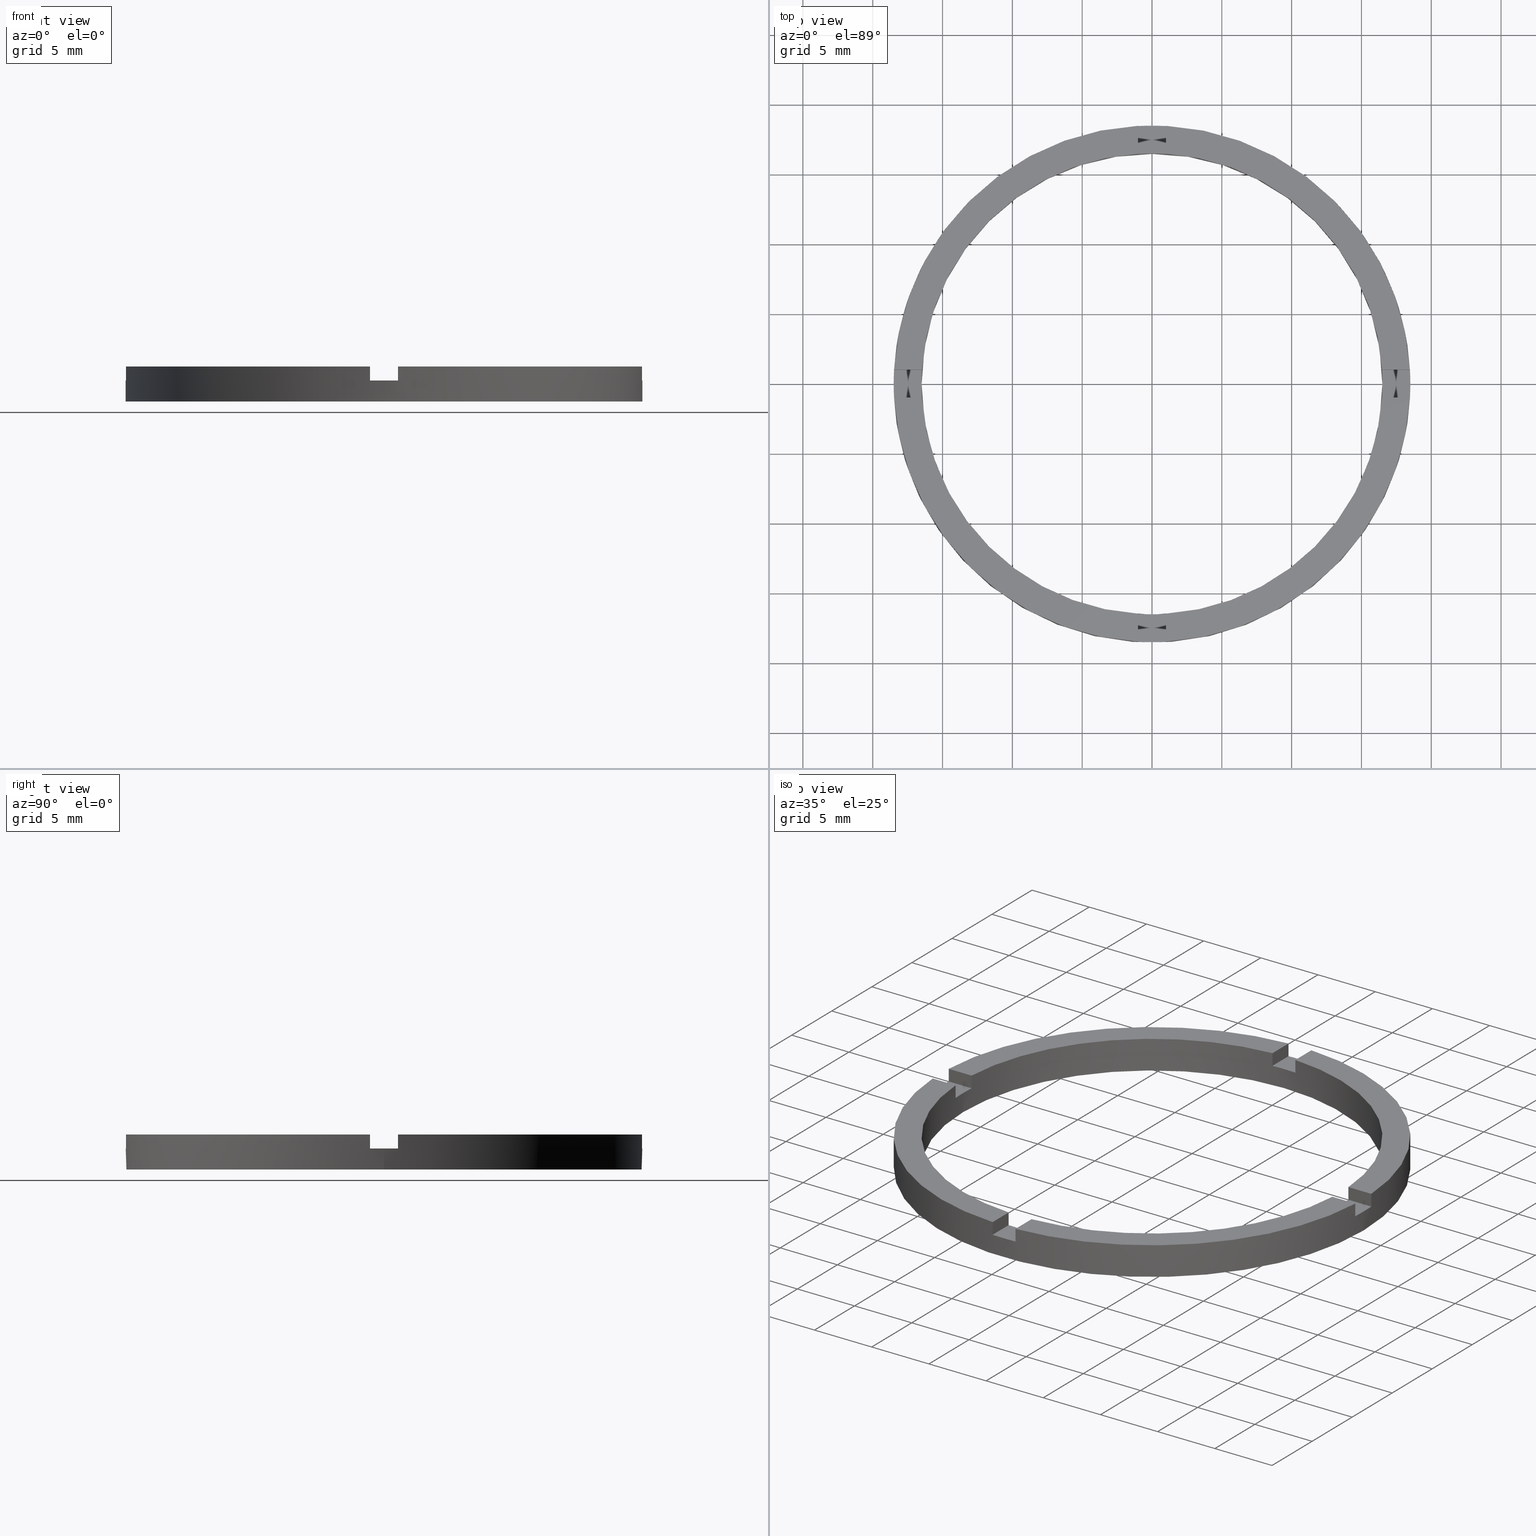
[diagram: canonical four-view strip — front | top / right | iso, engineering-drawing reading convention]
A machine part, canonical four-view strip (front | top / right | iso — engineering-drawing reading convention). The complete STEP part file that produces these views, byte-faithful:
ISO-10303-21;
HEADER;
FILE_DESCRIPTION (( 'STEP AP203' ),
    '1' );
FILE_NAME ('514079.step',
    '2024-12-26T02:35:32',
    ( 'MSI' ),
    ( '' ),
    'SwSTEP 2.0',
    'SolidWorks 2020',
    '' );
FILE_SCHEMA (( 'CONFIG_CONTROL_DESIGN' ));
ENDSEC;

DATA;
#1 = DIRECTION ( 'NONE',  ( 0.000000000000000000, 0.000000000000000000, 1.000000000000000000 ) ) ;
#2 = EDGE_CURVE ( 'NONE', #98, #100, #432, .T. ) ;
#3 = APPROVAL_STATUS ( 'not_yet_approved' ) ;
#4 = CARTESIAN_POINT ( 'NONE',  ( 0.000000000000000000, 0.000000000000000000, 1.500000000000000000 ) ) ;
#5 = AXIS2_PLACEMENT_3D ( 'NONE', #189, #531, #418 ) ;
#6 = ADVANCED_BREP_SHAPE_REPRESENTATION ( '514079', ( #482, #479 ), #270 ) ;
#7 = DIRECTION ( 'NONE',  ( -0.000000000000000000, -0.000000000000000000, -1.000000000000000000 ) ) ;
#8 = DIRECTION ( 'NONE',  ( 1.000000000000000000, 1.951563910473908228E-16, -0.000000000000000000 ) ) ;
#9 = DIRECTION ( 'NONE',  ( 0.000000000000000000, 0.000000000000000000, 1.000000000000000000 ) ) ;
#10 = DIRECTION ( 'NONE',  ( 1.000000000000000000, 0.000000000000000000, 0.000000000000000000 ) ) ;
#11 = CARTESIAN_POINT ( 'NONE',  ( 0.000000000000000000, 0.000000000000000000, 0.000000000000000000 ) ) ;
#12 = CARTESIAN_POINT ( 'NONE',  ( -18.47295320191116375, -1.000000000000025313, 1.500000000000000000 ) ) ;
#13 = AXIS2_PLACEMENT_3D ( 'NONE', #545, #292, #255 ) ;
#14 = CARTESIAN_POINT ( 'NONE',  ( 0.9999999999999733546, 18.47295320191116375, 1.500000000000000000 ) ) ;
#15 = DIRECTION ( 'NONE',  ( 1.000000000000000000, 0.000000000000000000, 0.000000000000000000 ) ) ;
#16 = AXIS2_PLACEMENT_3D ( 'NONE', #498, #324, #439 ) ;
#17 = EDGE_CURVE ( 'NONE', #673, #136, #413, .T. ) ;
#18 = CARTESIAN_POINT ( 'NONE',  ( 0.000000000000000000, 0.000000000000000000, 2.500000000000000000 ) ) ;
#19 = DIRECTION ( 'NONE',  ( 0.000000000000000000, 0.000000000000000000, 1.000000000000000000 ) ) ;
#20 = EDGE_CURVE ( 'NONE', #684, #507, #678, .T. ) ;
#21 = EDGE_CURVE ( 'NONE', #595, #586, #186, .T. ) ;
#22 = CARTESIAN_POINT ( 'NONE',  ( 18.47295320191115309, -1.000000000000157208, 1.500000000000000000 ) ) ;
#23 = CARTESIAN_POINT ( 'NONE',  ( 0.000000000000000000, 0.000000000000000000, 2.500000000000000000 ) ) ;
#24 = DIRECTION ( 'NONE',  ( 0.000000000000000000, 0.000000000000000000, 1.000000000000000000 ) ) ;
#25 = DIRECTION ( 'NONE',  ( 0.000000000000000000, 0.000000000000000000, 1.000000000000000000 ) ) ;
#26 = DIRECTION ( 'NONE',  ( 0.000000000000000000, 0.000000000000000000, 1.000000000000000000 ) ) ;
#27 = CARTESIAN_POINT ( 'NONE',  ( -8.500000000000184741, -1.000000000000023537, 1.500000000000000000 ) ) ;
#28 = PLANE ( 'NONE',  #249 ) ;
#29 = ADVANCED_FACE ( 'NONE', ( #451 ), #528, .F. ) ;
#30 = DIRECTION ( 'NONE',  ( -0.000000000000000000, -0.000000000000000000, -1.000000000000000000 ) ) ;
#31 = DIRECTION ( 'NONE',  ( 1.000000000000000000, 0.000000000000000000, 0.000000000000000000 ) ) ;
#32 = ADVANCED_FACE ( 'NONE', ( #423 ), #374, .F. ) ;
#33 = PERSON_AND_ORGANIZATION_ROLE ( 'classification_officer' ) ;
#34 = CARTESIAN_POINT ( 'NONE',  ( 8.499999999999992895, 0.9999999999998419042, 2.500000000000000000 ) ) ;
#35 = PRODUCT_RELATED_PRODUCT_CATEGORY ( 'detail', '', ( #284 ) ) ;
#36 = EDGE_CURVE ( 'NONE', #348, #594, #159, .T. ) ;
#37 = DIRECTION ( 'NONE',  ( -0.000000000000000000, 0.000000000000000000, 1.000000000000000000 ) ) ;
#38 = EDGE_CURVE ( 'NONE', #684, #618, #688, .T. ) ;
#39 = CARTESIAN_POINT ( 'NONE',  ( 0.000000000000000000, 0.000000000000000000, 1.500000000000000000 ) ) ;
#40 = CARTESIAN_POINT ( 'NONE',  ( -8.500000000000184741, 0.9999999999999765743, 2.500000000000000000 ) ) ;
#41 = DIRECTION ( 'NONE',  ( -1.000000000000000000, -1.951563910473908228E-16, 0.000000000000000000 ) ) ;
#42 = PLANE ( 'NONE',  #327 ) ;
#43 = DIRECTION ( 'NONE',  ( 0.000000000000000000, 0.000000000000000000, 1.000000000000000000 ) ) ;
#44 = DIRECTION ( 'NONE',  ( -1.000000000000000000, -8.673617379884034239E-17, -0.000000000000000000 ) ) ;
#45 = CARTESIAN_POINT ( 'NONE',  ( 0.9999999999999733546, 18.47295320191116375, 2.500000000000000000 ) ) ;
#46 = CARTESIAN_POINT ( 'NONE',  ( 0.000000000000000000, 0.000000000000000000, 1.500000000000000000 ) ) ;
#47 = DIRECTION ( 'NONE',  ( 1.000000000000000000, 8.673617379884034239E-17, 0.000000000000000000 ) ) ;
#48 = DIRECTION ( 'NONE',  ( 0.000000000000000000, -0.000000000000000000, 1.000000000000000000 ) ) ;
#49 = DIRECTION ( 'NONE',  ( 0.000000000000000000, 0.000000000000000000, 1.000000000000000000 ) ) ;
#50 = AXIS2_PLACEMENT_3D ( 'NONE', #11, #275, #646 ) ;
#51 = DIRECTION ( 'NONE',  ( 0.000000000000000000, 0.000000000000000000, 1.000000000000000000 ) ) ;
#52 = CARTESIAN_POINT ( 'NONE',  ( 0.000000000000000000, 0.000000000000000000, 2.500000000000000000 ) ) ;
#53 = CARTESIAN_POINT ( 'NONE',  ( -18.50000000000000000, 0.000000000000000000, 1.500000000000000000 ) ) ;
#54 = ORIENTED_EDGE ( 'NONE', *, *, #296, .F. ) ;
#55 = ORIENTED_EDGE ( 'NONE', *, *, #251, .F. ) ;
#56 = CC_DESIGN_APPROVAL ( #262, ( #412 ) ) ;
#57 = ADVANCED_FACE ( 'NONE', ( #166 ), #537, .T. ) ;
#58 = ORIENTED_EDGE ( 'NONE', *, *, #427, .F. ) ;
#59 = DIRECTION ( 'NONE',  ( 1.000000000000000000, 0.000000000000000000, -0.000000000000000000 ) ) ;
#60 = DIRECTION ( 'NONE',  ( 1.951563910473908228E-16, -1.000000000000000000, 0.000000000000000000 ) ) ;
#61 = ORIENTED_EDGE ( 'NONE', *, *, #355, .F. ) ;
#62 = ORIENTED_EDGE ( 'NONE', *, *, #289, .F. ) ;
#63 = ORIENTED_EDGE ( 'NONE', *, *, #540, .T. ) ;
#64 = ADVANCED_FACE ( 'NONE', ( #169 ), #456, .T. ) ;
#65 = VERTEX_POINT ( 'NONE', #12 ) ;
#66 = EDGE_CURVE ( 'NONE', #616, #595, #723, .T. ) ;
#67 = ORIENTED_EDGE ( 'NONE', *, *, #543, .F. ) ;
#68 = VERTEX_POINT ( 'NONE', #530 ) ;
#69 = PLANE ( 'NONE',  #496 ) ;
#70 = ORIENTED_EDGE ( 'NONE', *, *, #259, .T. ) ;
#71 = PERSON_AND_ORGANIZATION_ROLE ( 'creator' ) ;
#72 = DIRECTION ( 'NONE',  ( -1.000000000000000000, -8.673617379884034239E-17, -0.000000000000000000 ) ) ;
#73 = PLANE ( 'NONE',  #273 ) ;
#74 = ORIENTED_EDGE ( 'NONE', *, *, #562, .T. ) ;
#75 = ORIENTED_EDGE ( 'NONE', *, *, #253, .F. ) ;
#76 = ORIENTED_EDGE ( 'NONE', *, *, #696, .F. ) ;
#77 = CLOSED_SHELL ( 'NONE', ( #226, #526, #57, #301, #774, #165, #295, #64, #371, #32, #305, #552, #486, #29, #730, #478, #235, #521, #558, #473, #780 ) ) ;
#78 = AXIS2_PLACEMENT_3D ( 'NONE', #277, #398, #490 ) ;
#79 = DIRECTION ( 'NONE',  ( 1.000000000000000000, 0.000000000000000000, 0.000000000000000000 ) ) ;
#80 = ORIENTED_EDGE ( 'NONE', *, *, #254, .T. ) ;
#81 = APPROVAL_ROLE ( '' ) ;
#82 = DIRECTION ( 'NONE',  ( -1.000000000000000000, -1.951563910473908228E-16, 0.000000000000000000 ) ) ;
#83 = DIRECTION ( 'NONE',  ( 1.301042606982605321E-16, -1.000000000000000000, 0.000000000000000000 ) ) ;
#84 = VERTEX_POINT ( 'NONE', #781 ) ;
#85 = ORIENTED_EDGE ( 'NONE', *, *, #523, .T. ) ;
#86 = ORIENTED_EDGE ( 'NONE', *, *, #107, .F. ) ;
#87 = ORIENTED_EDGE ( 'NONE', *, *, #244, .T. ) ;
#88 = DIRECTION ( 'NONE',  ( -0.000000000000000000, 0.000000000000000000, 1.000000000000000000 ) ) ;
#89 = DIRECTION ( 'NONE',  ( -1.000000000000000000, -1.301042606982605321E-16, 0.000000000000000000 ) ) ;
#90 = DIRECTION ( 'NONE',  ( 1.000000000000000000, 0.000000000000000000, -0.000000000000000000 ) ) ;
#91 = VERTEX_POINT ( 'NONE', #503 ) ;
#92 = ORIENTED_EDGE ( 'NONE', *, *, #343, .T. ) ;
#93 = AXIS2_PLACEMENT_3D ( 'NONE', #718, #556, #778 ) ;
#94 = ORIENTED_EDGE ( 'NONE', *, *, #97, .F. ) ;
#95 = ORIENTED_EDGE ( 'NONE', *, *, #21, .F. ) ;
#96 = DIRECTION ( 'NONE',  ( 0.000000000000000000, 0.000000000000000000, 1.000000000000000000 ) ) ;
#97 = EDGE_CURVE ( 'NONE', #100, #136, #732, .T. ) ;
#98 = VERTEX_POINT ( 'NONE', #429 ) ;
#99 = EDGE_LOOP ( 'NONE', ( #86, #344 ) ) ;
#100 = VERTEX_POINT ( 'NONE', #236 ) ;
#101 = ORIENTED_EDGE ( 'NONE', *, *, #20, .T. ) ;
#102 = LINE ( 'NONE', #250, #670 ) ;
#103 = DIRECTION ( 'NONE',  ( 1.000000000000000000, 0.000000000000000000, 0.000000000000000000 ) ) ;
#104 = ORIENTED_EDGE ( 'NONE', *, *, #425, .T. ) ;
#105 = VERTEX_POINT ( 'NONE', #247 ) ;
#106 = EDGE_CURVE ( 'NONE', #65, #689, #457, .T. ) ;
#107 = EDGE_CURVE ( 'NONE', #350, #604, #204, .T. ) ;
#108 = CARTESIAN_POINT ( 'NONE',  ( 0.000000000000000000, 0.000000000000000000, 1.500000000000000000 ) ) ;
#109 = ORIENTED_EDGE ( 'NONE', *, *, #274, .T. ) ;
#110 = AXIS2_PLACEMENT_3D ( 'NONE', #743, #9, #90 ) ;
#111 = ORIENTED_EDGE ( 'NONE', *, *, #769, .T. ) ;
#112 = LINE ( 'NONE', #501, #690 ) ;
#113 = ORIENTED_EDGE ( 'NONE', *, *, #38, .T. ) ;
#114 = VECTOR ( 'NONE', #477, 1000.000000000000000 ) ;
#115 = CARTESIAN_POINT ( 'NONE',  ( -18.47295320191116375, 0.9999999999999746869, 1.500000000000000000 ) ) ;
#116 = EDGE_CURVE ( 'NONE', #604, #350, #726, .T. ) ;
#117 = VERTEX_POINT ( 'NONE', #406 ) ;
#118 = FACE_OUTER_BOUND ( 'NONE', #598, .T. ) ;
#119 = ORIENTED_EDGE ( 'NONE', *, *, #466, .F. ) ;
#120 = LINE ( 'NONE', #135, #671 ) ;
#121 = CARTESIAN_POINT ( 'NONE',  ( 0.000000000000000000, 0.000000000000000000, 1.500000000000000000 ) ) ;
#122 = PRODUCT_DEFINITION_SHAPE ( 'NONE', 'NONE',  #620 ) ;
#123 = FACE_OUTER_BOUND ( 'NONE', #453, .T. ) ;
#124 = CC_DESIGN_DATE_AND_TIME_ASSIGNMENT ( #205, #230, ( #620 ) ) ;
#125 = ORIENTED_EDGE ( 'NONE', *, *, #518, .F. ) ;
#126 = VECTOR ( 'NONE', #30, 1000.000000000000000 ) ;
#127 = LINE ( 'NONE', #550, #126 ) ;
#128 = ORIENTED_EDGE ( 'NONE', *, *, #389, .F. ) ;
#129 = LINE ( 'NONE', #612, #687 ) ;
#130 = VECTOR ( 'NONE', #257, 1000.000000000000000 ) ;
#131 = AXIS2_PLACEMENT_3D ( 'NONE', #517, #653, #772 ) ;
#132 = CIRCLE ( 'NONE', #533, 16.50000000000000000 ) ;
#133 = VERTEX_POINT ( 'NONE', #281 ) ;
#134 = EDGE_CURVE ( 'NONE', #183, #509, #198, .T. ) ;
#135 = CARTESIAN_POINT ( 'NONE',  ( 18.50000000000000000, 2.265596578422603396E-15, 2.500000000000000000 ) ) ;
#136 = VERTEX_POINT ( 'NONE', #306 ) ;
#137 = FACE_OUTER_BOUND ( 'NONE', #386, .T. ) ;
#138 = ORIENTED_EDGE ( 'NONE', *, *, #662, .F. ) ;
#139 = LINE ( 'NONE', #145, #408 ) ;
#140 = PLANE ( 'NONE',  #487 ) ;
#141 = ORIENTED_EDGE ( 'NONE', *, *, #38, .F. ) ;
#142 = CIRCLE ( 'NONE', #431, 18.50000000000000000 ) ;
#143 = ORIENTED_EDGE ( 'NONE', *, *, #107, .T. ) ;
#144 = VECTOR ( 'NONE', #573, 1000.000000000000000 ) ;
#145 = CARTESIAN_POINT ( 'NONE',  ( -1.000000000000161204, -16.46966909200059348, 2.500000000000000000 ) ) ;
#146 = VECTOR ( 'NONE', #72, 1000.000000000000000 ) ;
#147 = CIRCLE ( 'NONE', #151, 18.50000000000000000 ) ;
#148 = DIRECTION ( 'NONE',  ( 1.000000000000000000, 1.951563910473908228E-16, 0.000000000000000000 ) ) ;
#149 = VECTOR ( 'NONE', #82, 1000.000000000000000 ) ;
#150 = CYLINDRICAL_SURFACE ( 'NONE', #177, 18.50000000000000000 ) ;
#151 = AXIS2_PLACEMENT_3D ( 'NONE', #245, #330, #691 ) ;
#152 = FACE_OUTER_BOUND ( 'NONE', #628, .T. ) ;
#153 = ORIENTED_EDGE ( 'NONE', *, *, #106, .F. ) ;
#154 = CIRCLE ( 'NONE', #93, 16.50000000000000000 ) ;
#155 = CARTESIAN_POINT ( 'NONE',  ( -18.47295320191116375, -1.000000000000025313, 2.500000000000000000 ) ) ;
#156 = ORIENTED_EDGE ( 'NONE', *, *, #174, .T. ) ;
#157 = PERSON_AND_ORGANIZATION ( #547, #695 ) ;
#158 = CIRCLE ( 'NONE', #191, 16.50000000000000000 ) ;
#159 = LINE ( 'NONE', #228, #175 ) ;
#160 = VECTOR ( 'NONE', #202, 1000.000000000000000 ) ;
#161 = ORIENTED_EDGE ( 'NONE', *, *, #427, .T. ) ;
#162 = ORIENTED_EDGE ( 'NONE', *, *, #589, .T. ) ;
#163 = VECTOR ( 'NONE', #508, 1000.000000000000000 ) ;
#164 = CIRCLE ( 'NONE', #5, 18.50000000000000000 ) ;
#165 = ADVANCED_FACE ( 'NONE', ( #200 ), #42, .T. ) ;
#166 = FACE_OUTER_BOUND ( 'NONE', #351, .T. ) ;
#167 = VERTEX_POINT ( 'NONE', #285 ) ;
#168 = VECTOR ( 'NONE', #701, 1000.000000000000000 ) ;
#169 = FACE_OUTER_BOUND ( 'NONE', #340, .T. ) ;
#170 = CIRCLE ( 'NONE', #733, 18.50000000000000000 ) ;
#171 = PLANE ( 'NONE',  #572 ) ;
#172 = ORIENTED_EDGE ( 'NONE', *, *, #455, .T. ) ;
#173 = VECTOR ( 'NONE', #581, 1000.000000000000000 ) ;
#174 = EDGE_CURVE ( 'NONE', #117, #609, #721, .T. ) ;
#175 = VECTOR ( 'NONE', #8, 1000.000000000000000 ) ;
#176 = FACE_OUTER_BOUND ( 'NONE', #650, .T. ) ;
#177 = AXIS2_PLACEMENT_3D ( 'NONE', #484, #181, #399 ) ;
#178 = PERSON_AND_ORGANIZATION ( #547, #695 ) ;
#179 = ORIENTED_EDGE ( 'NONE', *, *, #725, .T. ) ;
#180 = COORDINATED_UNIVERSAL_TIME_OFFSET ( 8, 0, .AHEAD. ) ;
#181 = DIRECTION ( 'NONE',  ( -0.000000000000000000, -0.000000000000000000, -1.000000000000000000 ) ) ;
#182 = ORIENTED_EDGE ( 'NONE', *, *, #728, .T. ) ;
#183 = VERTEX_POINT ( 'NONE', #188 ) ;
#184 = ORIENTED_EDGE ( 'NONE', *, *, #769, .F. ) ;
#185 = ORIENTED_EDGE ( 'NONE', *, *, #563, .T. ) ;
#186 = LINE ( 'NONE', #40, #149 ) ;
#187 = EDGE_LOOP ( 'NONE', ( #339, #448, #153, #195 ) ) ;
#188 = CARTESIAN_POINT ( 'NONE',  ( -1.000000000000161204, -16.46966909200059348, 1.500000000000000000 ) ) ;
#189 = CARTESIAN_POINT ( 'NONE',  ( 0.000000000000000000, 0.000000000000000000, 1.500000000000000000 ) ) ;
#190 = ORIENTED_EDGE ( 'NONE', *, *, #331, .T. ) ;
#191 = AXIS2_PLACEMENT_3D ( 'NONE', #337, #542, #328 ) ;
#192 = DIRECTION ( 'NONE',  ( 0.000000000000000000, 0.000000000000000000, 1.000000000000000000 ) ) ;
#193 = CARTESIAN_POINT ( 'NONE',  ( 0.000000000000000000, 0.000000000000000000, 2.500000000000000000 ) ) ;
#194 = LINE ( 'NONE', #549, #447 ) ;
#195 = ORIENTED_EDGE ( 'NONE', *, *, #445, .F. ) ;
#196 = VECTOR ( 'NONE', #535, 1000.000000000000000 ) ;
#197 = ORIENTED_EDGE ( 'NONE', *, *, #728, .F. ) ;
#198 = CIRCLE ( 'NONE', #577, 16.50000000000000000 ) ;
#199 = AXIS2_PLACEMENT_3D ( 'NONE', #243, #325, #430 ) ;
#200 = FACE_OUTER_BOUND ( 'NONE', #625, .T. ) ;
#201 = CARTESIAN_POINT ( 'NONE',  ( 0.000000000000000000, 0.000000000000000000, 2.500000000000000000 ) ) ;
#202 = DIRECTION ( 'NONE',  ( 0.000000000000000000, 1.000000000000000000, 0.000000000000000000 ) ) ;
#203 = FACE_OUTER_BOUND ( 'NONE', #346, .T. ) ;
#204 = CIRCLE ( 'NONE', #513, 18.50000000000000000 ) ;
#205 = DATE_AND_TIME ( #485, #744 ) ;
#206 = CC_DESIGN_APPROVAL ( #593, ( #308 ) ) ;
#207 = CIRCLE ( 'NONE', #630, 16.50000000000000000 ) ;
#208 = PERSON_AND_ORGANIZATION ( #547, #695 ) ;
#209 = CARTESIAN_POINT ( 'NONE',  ( 16.46966909200059703, -1.000000000000157208, 1.500000000000000000 ) ) ;
#210 = EDGE_CURVE ( 'NONE', #91, #689, #207, .T. ) ;
#211 = DATE_AND_TIME ( #727, #462 ) ;
#212 = EDGE_CURVE ( 'NONE', #603, #644, #734, .T. ) ;
#213 = DIRECTION ( 'NONE',  ( 1.000000000000000000, 0.000000000000000000, 0.000000000000000000 ) ) ;
#214 = CARTESIAN_POINT ( 'NONE',  ( 0.9999999999999733546, 16.46966909200060414, 2.500000000000000000 ) ) ;
#215 = APPROVAL_DATE_TIME ( #735, #262 ) ;
#216 = PERSON_AND_ORGANIZATION ( #547, #695 ) ;
#217 = PLANE ( 'NONE',  #13 ) ;
#218 = CALENDAR_DATE ( 2024, 26, 12 ) ;
#219 = APPROVAL_PERSON_ORGANIZATION ( #472, #593, #294 ) ;
#220 = COORDINATED_UNIVERSAL_TIME_OFFSET ( 8, 0, .AHEAD. ) ;
#221 = CC_DESIGN_PERSON_AND_ORGANIZATION_ASSIGNMENT ( #460, #71, ( #620 ) ) ;
#222 = CARTESIAN_POINT ( 'NONE',  ( -1.000000000000026645, 16.46966909200060059, 2.500000000000000000 ) ) ;
#223 = APPROVAL_PERSON_ORGANIZATION ( #748, #262, #557 ) ;
#224 = CARTESIAN_POINT ( 'NONE',  ( -8.500000000000184741, 0.9999999999999765743, 1.500000000000000000 ) ) ;
#225 = DIRECTION ( 'NONE',  ( 0.000000000000000000, 0.000000000000000000, 1.000000000000000000 ) ) ;
#226 = ADVANCED_FACE ( 'NONE', ( #203 ), #377, .F. ) ;
#227 =( NAMED_UNIT ( * ) PLANE_ANGLE_UNIT ( ) SI_UNIT ( $, .RADIAN. ) );
#228 = CARTESIAN_POINT ( 'NONE',  ( -8.500000000000184741, -1.000000000000023537, 2.500000000000000000 ) ) ;
#229 = DIRECTION ( 'NONE',  ( 0.000000000000000000, 0.000000000000000000, 1.000000000000000000 ) ) ;
#230 = DATE_TIME_ROLE ( 'creation_date' ) ;
#231 = SHAPE_DEFINITION_REPRESENTATION ( #122, #6 ) ;
#232 = AXIS2_PLACEMENT_3D ( 'NONE', #4, #561, #737 ) ;
#233 = CARTESIAN_POINT ( 'NONE',  ( 8.499999999999992895, -1.000000000000158096, 1.500000000000000000 ) ) ;
#234 = APPLICATION_CONTEXT ( 'configuration controlled 3d designs of mechanical parts and assemblies' ) ;
#235 = ADVANCED_FACE ( 'NONE', ( #643 ), #69, .F. ) ;
#236 = CARTESIAN_POINT ( 'NONE',  ( 16.46966909200061480, 0.9999999999998427924, 2.500000000000000000 ) ) ;
#237 = ORIENTED_EDGE ( 'NONE', *, *, #212, .T. ) ;
#238 = CARTESIAN_POINT ( 'NONE',  ( 0.000000000000000000, 0.000000000000000000, 1.500000000000000000 ) ) ;
#239 = CARTESIAN_POINT ( 'NONE',  ( 0.000000000000000000, 0.000000000000000000, 1.500000000000000000 ) ) ;
#240 = CC_DESIGN_PERSON_AND_ORGANIZATION_ASSIGNMENT ( #480, #33, ( #308 ) ) ;
#241 = PLANE ( 'NONE',  #554 ) ;
#242 = DIRECTION ( 'NONE',  ( 1.000000000000000000, 0.000000000000000000, 0.000000000000000000 ) ) ;
#243 = CARTESIAN_POINT ( 'NONE',  ( 0.000000000000000000, 0.000000000000000000, 2.500000000000000000 ) ) ;
#244 = EDGE_CURVE ( 'NONE', #334, #91, #627, .T. ) ;
#245 = CARTESIAN_POINT ( 'NONE',  ( 0.000000000000000000, 0.000000000000000000, 1.500000000000000000 ) ) ;
#246 = AXIS2_PLACEMENT_3D ( 'NONE', #239, #312, #407 ) ;
#247 = CARTESIAN_POINT ( 'NONE',  ( 0.9999999999998391287, -18.47295320191117085, 2.500000000000000000 ) ) ;
#248 = PLANE ( 'NONE',  #131 ) ;
#249 = AXIS2_PLACEMENT_3D ( 'NONE', #770, #25, #775 ) ;
#250 = CARTESIAN_POINT ( 'NONE',  ( 0.9999999999999733546, 8.499999999999998224, 2.500000000000000000 ) ) ;
#251 = EDGE_CURVE ( 'NONE', #133, #509, #657, .T. ) ;
#252 = CARTESIAN_POINT ( 'NONE',  ( -1.000000000000026645, 16.46966909200060059, 2.500000000000000000 ) ) ;
#253 = EDGE_CURVE ( 'NONE', #459, #621, #649, .T. ) ;
#254 = EDGE_CURVE ( 'NONE', #117, #320, #396, .T. ) ;
#255 = DIRECTION ( 'NONE',  ( 1.000000000000000000, 0.000000000000000000, -0.000000000000000000 ) ) ;
#256 = DIRECTION ( 'NONE',  ( -0.000000000000000000, -0.000000000000000000, -1.000000000000000000 ) ) ;
#257 = DIRECTION ( 'NONE',  ( -0.000000000000000000, -0.000000000000000000, -1.000000000000000000 ) ) ;
#258 = EDGE_CURVE ( 'NONE', #436, #167, #652, .T. ) ;
#259 = EDGE_CURVE ( 'NONE', #167, #588, #665, .T. ) ;
#260 = CARTESIAN_POINT ( 'NONE',  ( 16.50000000000000000, 2.020667218593133100E-15, 2.500000000000000000 ) ) ;
#261 = CARTESIAN_POINT ( 'NONE',  ( 16.50000000000000000, 2.020667218593133100E-15, 0.000000000000000000 ) ) ;
#262 = APPROVAL ( #483, 'δָ��' ) ;
#263 = CARTESIAN_POINT ( 'NONE',  ( -18.47295320191116375, 0.9999999999999746869, 2.500000000000000000 ) ) ;
#264 =( NAMED_UNIT ( * ) SI_UNIT ( $, .STERADIAN. ) SOLID_ANGLE_UNIT ( ) );
#265 = DIRECTION ( 'NONE',  ( 0.000000000000000000, 0.000000000000000000, 1.000000000000000000 ) ) ;
#266 = UNCERTAINTY_MEASURE_WITH_UNIT (LENGTH_MEASURE( 1.000000000000000082E-05 ), #471, 'distance_accuracy_value', 'NONE');
#267 = EDGE_CURVE ( 'NONE', #100, #609, #132, .T. ) ;
#268 = DIRECTION ( 'NONE',  ( -0.000000000000000000, -0.000000000000000000, -1.000000000000000000 ) ) ;
#269 = DIRECTION ( 'NONE',  ( 1.000000000000000000, 0.000000000000000000, 0.000000000000000000 ) ) ;
#270 =( GEOMETRIC_REPRESENTATION_CONTEXT ( 3 ) GLOBAL_UNCERTAINTY_ASSIGNED_CONTEXT ( ( #266 ) ) GLOBAL_UNIT_ASSIGNED_CONTEXT ( ( #471, #227, #264 ) ) REPRESENTATION_CONTEXT ( 'NONE', 'WORKASPACE' ) );
#271 = CARTESIAN_POINT ( 'NONE',  ( 0.000000000000000000, 0.000000000000000000, 2.500000000000000000 ) ) ;
#272 = DIRECTION ( 'NONE',  ( -0.000000000000000000, -0.000000000000000000, -1.000000000000000000 ) ) ;
#273 = AXIS2_PLACEMENT_3D ( 'NONE', #731, #365, #300 ) ;
#274 = EDGE_CURVE ( 'NONE', #644, #709, #400, .T. ) ;
#275 = DIRECTION ( 'NONE',  ( 0.000000000000000000, 0.000000000000000000, 1.000000000000000000 ) ) ;
#276 = CARTESIAN_POINT ( 'NONE',  ( 8.499999999999992895, -1.000000000000158096, 1.500000000000000000 ) ) ;
#277 = CARTESIAN_POINT ( 'NONE',  ( 0.000000000000000000, 0.000000000000000000, 1.500000000000000000 ) ) ;
#278 = CARTESIAN_POINT ( 'NONE',  ( 16.46966909200059703, -1.000000000000157208, 2.500000000000000000 ) ) ;
#279 = PLANE ( 'NONE',  #605 ) ;
#280 = AXIS2_PLACEMENT_3D ( 'NONE', #193, #575, #286 ) ;
#281 = CARTESIAN_POINT ( 'NONE',  ( 0.9999999999998389066, -16.46966909200061480, 2.500000000000000000 ) ) ;
#282 = CARTESIAN_POINT ( 'NONE',  ( -1.000000000000160982, -18.47295320191115309, 2.500000000000000000 ) ) ;
#283 = CARTESIAN_POINT ( 'NONE',  ( 18.47295320191117085, 0.9999999999998427924, 1.500000000000000000 ) ) ;
#284 = PRODUCT ( '514079', '514079', '', ( #551 ) ) ;
#285 = CARTESIAN_POINT ( 'NONE',  ( 18.50000000000000000, 2.265596578422603396E-15, 1.500000000000000000 ) ) ;
#286 = DIRECTION ( 'NONE',  ( 1.000000000000000000, 0.000000000000000000, -0.000000000000000000 ) ) ;
#287 = CC_DESIGN_PERSON_AND_ORGANIZATION_ASSIGNMENT ( #178, #720, ( #284 ) ) ;
#288 = CARTESIAN_POINT ( 'NONE',  ( 0.9999999999999733546, 18.47295320191116375, 2.500000000000000000 ) ) ;
#289 = EDGE_CURVE ( 'NONE', #609, #621, #102, .T. ) ;
#290 = CARTESIAN_POINT ( 'NONE',  ( -1.000000000000160982, -18.47295320191115309, 2.500000000000000000 ) ) ;
#291 = AXIS2_PLACEMENT_3D ( 'NONE', #121, #360, #10 ) ;
#292 = DIRECTION ( 'NONE',  ( 0.000000000000000000, 0.000000000000000000, 1.000000000000000000 ) ) ;
#293 = CARTESIAN_POINT ( 'NONE',  ( 0.9999999999998391287, -18.47295320191117085, 2.500000000000000000 ) ) ;
#294 = APPROVAL_ROLE ( '' ) ;
#295 = ADVANCED_FACE ( 'NONE', ( #404, #631 ), #217, .F. ) ;
#296 = EDGE_CURVE ( 'NONE', #105, #709, #358, .T. ) ;
#297 = CARTESIAN_POINT ( 'NONE',  ( 18.47295320191115309, -1.000000000000157208, 2.500000000000000000 ) ) ;
#298 = CARTESIAN_POINT ( 'NONE',  ( 0.000000000000000000, 0.000000000000000000, 0.000000000000000000 ) ) ;
#299 = EDGE_CURVE ( 'NONE', #311, #350, #403, .T. ) ;
#300 = DIRECTION ( 'NONE',  ( -1.301042606982605321E-16, 1.000000000000000000, 0.000000000000000000 ) ) ;
#301 = ADVANCED_FACE ( 'NONE', ( #379 ), #28, .T. ) ;
#302 = CARTESIAN_POINT ( 'NONE',  ( -16.46966909200060414, 0.9999999999999751310, 1.500000000000000000 ) ) ;
#303 = DIRECTION ( 'NONE',  ( 0.000000000000000000, -0.000000000000000000, 1.000000000000000000 ) ) ;
#304 = DIRECTION ( 'NONE',  ( 1.000000000000000000, 0.000000000000000000, -0.000000000000000000 ) ) ;
#305 = ADVANCED_FACE ( 'NONE', ( #661 ), #140, .F. ) ;
#306 = CARTESIAN_POINT ( 'NONE',  ( 16.46966909200061480, 0.9999999999998427924, 1.500000000000000000 ) ) ;
#307 = PLANE ( 'NONE',  #759 ) ;
#308 = SECURITY_CLASSIFICATION ( '', '', #782 ) ;
#309 = ORIENTED_EDGE ( 'NONE', *, *, #2, .T. ) ;
#310 = ORIENTED_EDGE ( 'NONE', *, *, #17, .T. ) ;
#311 = VERTEX_POINT ( 'NONE', #53 ) ;
#312 = DIRECTION ( 'NONE',  ( 0.000000000000000000, 0.000000000000000000, 1.000000000000000000 ) ) ;
#313 = ORIENTED_EDGE ( 'NONE', *, *, #425, .F. ) ;
#314 = ORIENTED_EDGE ( 'NONE', *, *, #445, .T. ) ;
#315 = ORIENTED_EDGE ( 'NONE', *, *, #492, .F. ) ;
#316 = VERTEX_POINT ( 'NONE', #261 ) ;
#317 = DIRECTION ( 'NONE',  ( 1.000000000000000000, 8.673617379884034239E-17, 0.000000000000000000 ) ) ;
#318 = DIRECTION ( 'NONE',  ( 1.301042606982605321E-16, -1.000000000000000000, 0.000000000000000000 ) ) ;
#319 = ORIENTED_EDGE ( 'NONE', *, *, #267, .F. ) ;
#320 = VERTEX_POINT ( 'NONE', #615 ) ;
#321 = DIRECTION ( 'NONE',  ( -0.000000000000000000, -0.000000000000000000, -1.000000000000000000 ) ) ;
#322 = ORIENTED_EDGE ( 'NONE', *, *, #274, .F. ) ;
#323 = ORIENTED_EDGE ( 'NONE', *, *, #562, .F. ) ;
#324 = DIRECTION ( 'NONE',  ( -0.000000000000000000, -0.000000000000000000, -1.000000000000000000 ) ) ;
#325 = DIRECTION ( 'NONE',  ( -0.000000000000000000, -0.000000000000000000, -1.000000000000000000 ) ) ;
#326 = ORIENTED_EDGE ( 'NONE', *, *, #389, .T. ) ;
#327 = AXIS2_PLACEMENT_3D ( 'NONE', #271, #559, #659 ) ;
#328 = DIRECTION ( 'NONE',  ( 1.000000000000000000, 0.000000000000000000, 0.000000000000000000 ) ) ;
#329 = ORIENTED_EDGE ( 'NONE', *, *, #66, .T. ) ;
#330 = DIRECTION ( 'NONE',  ( 0.000000000000000000, 0.000000000000000000, 1.000000000000000000 ) ) ;
#331 = EDGE_CURVE ( 'NONE', #91, #421, #127, .T. ) ;
#332 = ORIENTED_EDGE ( 'NONE', *, *, #523, .F. ) ;
#333 = ORIENTED_EDGE ( 'NONE', *, *, #210, .F. ) ;
#334 = VERTEX_POINT ( 'NONE', #302 ) ;
#335 = CARTESIAN_POINT ( 'NONE',  ( 0.000000000000000000, 0.000000000000000000, 1.500000000000000000 ) ) ;
#336 = ORIENTED_EDGE ( 'NONE', *, *, #254, .F. ) ;
#337 = CARTESIAN_POINT ( 'NONE',  ( 0.000000000000000000, 0.000000000000000000, 2.500000000000000000 ) ) ;
#338 = ORIENTED_EDGE ( 'NONE', *, *, #296, .T. ) ;
#339 = ORIENTED_EDGE ( 'NONE', *, *, #36, .T. ) ;
#340 = EDGE_LOOP ( 'NONE', ( #313, #584, #461, #54, #172, #579, #113, #676, #314, #58, #580, #143 ) ) ;
#341 = DIRECTION ( 'NONE',  ( 0.000000000000000000, 0.000000000000000000, 1.000000000000000000 ) ) ;
#342 = DIRECTION ( 'NONE',  ( 1.000000000000000000, 8.673617379884034239E-17, 0.000000000000000000 ) ) ;
#343 = EDGE_CURVE ( 'NONE', #421, #316, #154, .T. ) ;
#344 = ORIENTED_EDGE ( 'NONE', *, *, #116, .F. ) ;
#345 = ORIENTED_EDGE ( 'NONE', *, *, #540, .F. ) ;
#346 = EDGE_LOOP ( 'NONE', ( #179, #63, #597, #619, #636, #771, #162, #391, #414, #55, #601, #613 ) ) ;
#347 = EDGE_LOOP ( 'NONE', ( #582, #237, #109, #61 ) ) ;
#348 = VERTEX_POINT ( 'NONE', #155 ) ;
#349 = CARTESIAN_POINT ( 'NONE',  ( 16.46966909200059703, -1.000000000000157208, 2.500000000000000000 ) ) ;
#350 = VERTEX_POINT ( 'NONE', #520 ) ;
#351 = EDGE_LOOP ( 'NONE', ( #359, #624, #95, #707 ) ) ;
#352 = ORIENTED_EDGE ( 'NONE', *, *, #299, .F. ) ;
#353 = DIRECTION ( 'NONE',  ( 0.000000000000000000, 0.000000000000000000, 1.000000000000000000 ) ) ;
#354 = EDGE_LOOP ( 'NONE', ( #345, #310, #94, #583, #711, #80, #323, #329, #67, #87, #190, #197 ) ) ;
#355 = EDGE_CURVE ( 'NONE', #436, #709, #369, .T. ) ;
#356 = DIRECTION ( 'NONE',  ( 1.000000000000000000, 0.000000000000000000, 0.000000000000000000 ) ) ;
#357 = APPROVAL ( #387, 'δָ��' ) ;
#358 = CIRCLE ( 'NONE', #548, 18.50000000000000000 ) ;
#359 = ORIENTED_EDGE ( 'NONE', *, *, #660, .F. ) ;
#360 = DIRECTION ( 'NONE',  ( 0.000000000000000000, 0.000000000000000000, 1.000000000000000000 ) ) ;
#361 = ORIENTED_EDGE ( 'NONE', *, *, #555, .F. ) ;
#362 = CARTESIAN_POINT ( 'NONE',  ( 18.47295320191117085, 0.9999999999998427924, 2.500000000000000000 ) ) ;
#363 = AXIS2_PLACEMENT_3D ( 'NONE', #27, #60, #148 ) ;
#364 = ORIENTED_EDGE ( 'NONE', *, *, #696, .T. ) ;
#365 = DIRECTION ( 'NONE',  ( 1.000000000000000000, 1.301042606982605321E-16, 0.000000000000000000 ) ) ;
#366 = DIRECTION ( 'NONE',  ( -1.951563910473908228E-16, 1.000000000000000000, 0.000000000000000000 ) ) ;
#367 = ORIENTED_EDGE ( 'NONE', *, *, #715, .F. ) ;
#368 = ORIENTED_EDGE ( 'NONE', *, *, #289, .T. ) ;
#369 = LINE ( 'NONE', #297, #651 ) ;
#370 = DIRECTION ( 'NONE',  ( -1.000000000000000000, 0.000000000000000000, 0.000000000000000000 ) ) ;
#371 = ADVANCED_FACE ( 'NONE', ( #392 ), #669, .F. ) ;
#372 = ORIENTED_EDGE ( 'NONE', *, *, #555, .T. ) ;
#373 = DIRECTION ( 'NONE',  ( 1.000000000000000000, 0.000000000000000000, 0.000000000000000000 ) ) ;
#374 = PLANE ( 'NONE',  #363 ) ;
#375 = LINE ( 'NONE', #362, #677 ) ;
#376 = CARTESIAN_POINT ( 'NONE',  ( 0.9999999999998391287, -18.47295320191117085, 1.500000000000000000 ) ) ;
#377 = CYLINDRICAL_SURFACE ( 'NONE', #16, 16.50000000000000000 ) ;
#378 = ORIENTED_EDGE ( 'NONE', *, *, #17, .F. ) ;
#379 = FACE_OUTER_BOUND ( 'NONE', #614, .T. ) ;
#380 = CIRCLE ( 'NONE', #767, 18.50000000000000000 ) ;
#381 = VECTOR ( 'NONE', #19, 1000.000000000000000 ) ;
#382 = VECTOR ( 'NONE', #783, 1000.000000000000000 ) ;
#383 = AXIS2_PLACEMENT_3D ( 'NONE', #335, #341, #213 ) ;
#384 = DIRECTION ( 'NONE',  ( 0.000000000000000000, 0.000000000000000000, 1.000000000000000000 ) ) ;
#385 = VECTOR ( 'NONE', #764, 1000.000000000000000 ) ;
#386 = EDGE_LOOP ( 'NONE', ( #766, #104, #633, #352, #768, #776, #510, #111, #76, #663, #125, #422 ) ) ;
#387 = APPROVAL_STATUS ( 'not_yet_approved' ) ;
#388 = LINE ( 'NONE', #524, #658 ) ;
#389 = EDGE_CURVE ( 'NONE', #105, #133, #639, .T. ) ;
#390 = CARTESIAN_POINT ( 'NONE',  ( -1.000000000000162315, -8.500000000000179412, 2.500000000000000000 ) ) ;
#391 = ORIENTED_EDGE ( 'NONE', *, *, #570, .F. ) ;
#392 = FACE_OUTER_BOUND ( 'NONE', #354, .T. ) ;
#393 = VECTOR ( 'NONE', #465, 1000.000000000000000 ) ;
#394 = CC_DESIGN_SECURITY_CLASSIFICATION ( #308, ( #412 ) ) ;
#395 = VECTOR ( 'NONE', #44, 1000.000000000000000 ) ;
#396 = CIRCLE ( 'NONE', #747, 16.50000000000000000 ) ;
#397 = DIRECTION ( 'NONE',  ( 0.000000000000000000, 0.000000000000000000, 1.000000000000000000 ) ) ;
#398 = DIRECTION ( 'NONE',  ( 0.000000000000000000, 0.000000000000000000, 1.000000000000000000 ) ) ;
#399 = DIRECTION ( 'NONE',  ( -1.000000000000000000, 0.000000000000000000, 0.000000000000000000 ) ) ;
#400 = LINE ( 'NONE', #685, #402 ) ;
#401 = ORIENTED_EDGE ( 'NONE', *, *, #589, .F. ) ;
#402 = VECTOR ( 'NONE', #47, 1000.000000000000000 ) ;
#403 = LINE ( 'NONE', #534, #144 ) ;
#404 = FACE_OUTER_BOUND ( 'NONE', #99, .T. ) ;
#405 = LINE ( 'NONE', #390, #645 ) ;
#406 = CARTESIAN_POINT ( 'NONE',  ( 0.9999999999999733546, 16.46966909200060414, 1.500000000000000000 ) ) ;
#407 = DIRECTION ( 'NONE',  ( 1.000000000000000000, 0.000000000000000000, 0.000000000000000000 ) ) ;
#408 = VECTOR ( 'NONE', #225, 1000.000000000000000 ) ;
#409 = DIRECTION ( 'NONE',  ( 1.000000000000000000, 0.000000000000000000, 0.000000000000000000 ) ) ;
#410 = ORIENTED_EDGE ( 'NONE', *, *, #602, .F. ) ;
#411 = FACE_OUTER_BOUND ( 'NONE', #668, .T. ) ;
#412 = PRODUCT_DEFINITION_FORMATION_WITH_SPECIFIED_SOURCE ( '�κ�', '', #284, .NOT_KNOWN. ) ;
#413 = CIRCLE ( 'NONE', #78, 16.50000000000000000 ) ;
#414 = ORIENTED_EDGE ( 'NONE', *, *, #134, .T. ) ;
#415 = CIRCLE ( 'NONE', #763, 16.50000000000000000 ) ;
#416 = ORIENTED_EDGE ( 'NONE', *, *, #244, .F. ) ;
#417 = CARTESIAN_POINT ( 'NONE',  ( 0.9999999999999733546, 16.46966909200060414, 2.500000000000000000 ) ) ;
#418 = DIRECTION ( 'NONE',  ( 1.000000000000000000, 0.000000000000000000, 0.000000000000000000 ) ) ;
#419 = FACE_OUTER_BOUND ( 'NONE', #632, .T. ) ;
#420 = PLANE ( 'NONE',  #546 ) ;
#421 = VERTEX_POINT ( 'NONE', #512 ) ;
#422 = ORIENTED_EDGE ( 'NONE', *, *, #466, .T. ) ;
#423 = FACE_OUTER_BOUND ( 'NONE', #187, .T. ) ;
#424 = LINE ( 'NONE', #753, #160 ) ;
#425 = EDGE_CURVE ( 'NONE', #167, #604, #120, .T. ) ;
#426 = LINE ( 'NONE', #514, #163 ) ;
#427 = EDGE_CURVE ( 'NONE', #311, #65, #147, .T. ) ;
#428 = VECTOR ( 'NONE', #504, 1000.000000000000000 ) ;
#429 = CARTESIAN_POINT ( 'NONE',  ( 18.47295320191117085, 0.9999999999998427924, 2.500000000000000000 ) ) ;
#430 = DIRECTION ( 'NONE',  ( -1.000000000000000000, 0.000000000000000000, 0.000000000000000000 ) ) ;
#431 = AXIS2_PLACEMENT_3D ( 'NONE', #467, #516, #607 ) ;
#432 = LINE ( 'NONE', #34, #146 ) ;
#433 = CIRCLE ( 'NONE', #246, 16.50000000000000000 ) ;
#434 = ORIENTED_EDGE ( 'NONE', *, *, #134, .F. ) ;
#435 = LINE ( 'NONE', #539, #173 ) ;
#436 = VERTEX_POINT ( 'NONE', #22 ) ;
#437 = LINE ( 'NONE', #568, #700 ) ;
#438 = DIRECTION ( 'NONE',  ( 0.000000000000000000, 0.000000000000000000, 1.000000000000000000 ) ) ;
#439 = DIRECTION ( 'NONE',  ( -1.000000000000000000, 0.000000000000000000, 0.000000000000000000 ) ) ;
#440 = VECTOR ( 'NONE', #317, 1000.000000000000000 ) ;
#441 = EDGE_CURVE ( 'NONE', #592, #311, #656, .T. ) ;
#442 = CARTESIAN_POINT ( 'NONE',  ( 18.50000000000000000, 2.265596578422603396E-15, 0.000000000000000000 ) ) ;
#443 = ORIENTED_EDGE ( 'NONE', *, *, #455, .F. ) ;
#444 = APPROVAL_PERSON_ORGANIZATION ( #157, #357, #81 ) ;
#445 = EDGE_CURVE ( 'NONE', #348, #65, #112, .T. ) ;
#446 = ORIENTED_EDGE ( 'NONE', *, *, #640, .T. ) ;
#447 = VECTOR ( 'NONE', #489, 1000.000000000000000 ) ;
#448 = ORIENTED_EDGE ( 'NONE', *, *, #758, .T. ) ;
#449 = CARTESIAN_POINT ( 'NONE',  ( 0.000000000000000000, 0.000000000000000000, 1.500000000000000000 ) ) ;
#450 = CARTESIAN_POINT ( 'NONE',  ( -1.000000000000160982, -18.47295320191115309, 1.500000000000000000 ) ) ;
#451 = FACE_OUTER_BOUND ( 'NONE', #655, .T. ) ;
#452 = ORIENTED_EDGE ( 'NONE', *, *, #602, .T. ) ;
#453 = EDGE_LOOP ( 'NONE', ( #326, #634, #315, #443 ) ) ;
#454 = AXIS2_PLACEMENT_3D ( 'NONE', #449, #438, #506 ) ;
#455 = EDGE_CURVE ( 'NONE', #105, #507, #654, .T. ) ;
#456 = CYLINDRICAL_SURFACE ( 'NONE', #199, 18.50000000000000000 ) ;
#457 = LINE ( 'NONE', #745, #196 ) ;
#458 = FACE_OUTER_BOUND ( 'NONE', #719, .T. ) ;
#459 = VERTEX_POINT ( 'NONE', #14 ) ;
#460 = PERSON_AND_ORGANIZATION ( #547, #695 ) ;
#461 = ORIENTED_EDGE ( 'NONE', *, *, #355, .T. ) ;
#462 = LOCAL_TIME ( 10, 35, 32.00000000000000000, #180 ) ;
#463 = VECTOR ( 'NONE', #1, 1000.000000000000000 ) ;
#464 = LOCAL_TIME ( 10, 35, 32.00000000000000000, #220 ) ;
#465 = DIRECTION ( 'NONE',  ( -0.000000000000000000, -0.000000000000000000, -1.000000000000000000 ) ) ;
#466 = EDGE_CURVE ( 'NONE', #98, #588, #375, .T. ) ;
#467 = CARTESIAN_POINT ( 'NONE',  ( 0.000000000000000000, 0.000000000000000000, 2.500000000000000000 ) ) ;
#468 = VECTOR ( 'NONE', #192, 1000.000000000000000 ) ;
#469 = DIRECTION ( 'NONE',  ( -0.000000000000000000, -0.000000000000000000, -1.000000000000000000 ) ) ;
#470 = CC_DESIGN_APPROVAL ( #357, ( #620 ) ) ;
#471 =( LENGTH_UNIT ( ) NAMED_UNIT ( * ) SI_UNIT ( .MILLI., .METRE. ) );
#472 = PERSON_AND_ORGANIZATION ( #547, #695 ) ;
#473 = ADVANCED_FACE ( 'NONE', ( #118 ), #248, .F. ) ;
#474 = CARTESIAN_POINT ( 'NONE',  ( 0.9999999999998389066, -16.46966909200061480, 1.500000000000000000 ) ) ;
#475 = CARTESIAN_POINT ( 'NONE',  ( 0.9999999999998377964, -8.500000000000179412, 2.500000000000000000 ) ) ;
#476 = DIRECTION ( 'NONE',  ( 0.000000000000000000, 0.000000000000000000, 1.000000000000000000 ) ) ;
#477 = DIRECTION ( 'NONE',  ( -1.301042606982605321E-16, 1.000000000000000000, -0.000000000000000000 ) ) ;
#478 = ADVANCED_FACE ( 'NONE', ( #152 ), #241, .F. ) ;
#479 = AXIS2_PLACEMENT_3D ( 'NONE', #298, #397, #373 ) ;
#480 = PERSON_AND_ORGANIZATION ( #547, #695 ) ;
#481 = CARTESIAN_POINT ( 'NONE',  ( 0.000000000000000000, 0.000000000000000000, 2.500000000000000000 ) ) ;
#482 = MANIFOLD_SOLID_BREP ( '�г�-����1', #77 ) ;
#483 = APPROVAL_STATUS ( 'not_yet_approved' ) ;
#484 = CARTESIAN_POINT ( 'NONE',  ( 0.000000000000000000, 0.000000000000000000, 2.500000000000000000 ) ) ;
#485 = CALENDAR_DATE ( 2024, 26, 12 ) ;
#486 = ADVANCED_FACE ( 'NONE', ( #123 ), #73, .F. ) ;
#487 = AXIS2_PLACEMENT_3D ( 'NONE', #224, #366, #515 ) ;
#488 = LOCAL_TIME ( 10, 35, 32.00000000000000000, #750 ) ;
#489 = DIRECTION ( 'NONE',  ( -0.000000000000000000, -0.000000000000000000, -1.000000000000000000 ) ) ;
#490 = DIRECTION ( 'NONE',  ( 1.000000000000000000, 0.000000000000000000, 0.000000000000000000 ) ) ;
#491 = COORDINATED_UNIVERSAL_TIME_OFFSET ( 8, 0, .AHEAD. ) ;
#492 = EDGE_CURVE ( 'NONE', #507, #509, #642, .T. ) ;
#493 = LOCAL_TIME ( 10, 35, 32.00000000000000000, #491 ) ;
#494 = APPROVAL_DATE_TIME ( #211, #357 ) ;
#495 = CARTESIAN_POINT ( 'NONE',  ( 0.000000000000000000, 0.000000000000000000, 0.000000000000000000 ) ) ;
#496 = AXIS2_PLACEMENT_3D ( 'NONE', #233, #755, #342 ) ;
#497 = APPROVAL_DATE_TIME ( #502, #593 ) ;
#498 = CARTESIAN_POINT ( 'NONE',  ( 0.000000000000000000, 0.000000000000000000, 2.500000000000000000 ) ) ;
#499 = CARTESIAN_POINT ( 'NONE',  ( -16.46966909200060414, -1.000000000000024869, 1.500000000000000000 ) ) ;
#500 = CARTESIAN_POINT ( 'NONE',  ( -1.000000000000026645, 8.499999999999998224, 1.500000000000000000 ) ) ;
#501 = CARTESIAN_POINT ( 'NONE',  ( -18.47295320191116375, -1.000000000000025313, 2.500000000000000000 ) ) ;
#502 = DATE_AND_TIME ( #760, #493 ) ;
#503 = CARTESIAN_POINT ( 'NONE',  ( -16.50000000000000000, 0.000000000000000000, 1.500000000000000000 ) ) ;
#504 = DIRECTION ( 'NONE',  ( 0.000000000000000000, 0.000000000000000000, 1.000000000000000000 ) ) ;
#505 = EDGE_LOOP ( 'NONE', ( #713, #161, #611, #333, #416, #694 ) ) ;
#506 = DIRECTION ( 'NONE',  ( 1.000000000000000000, 0.000000000000000000, 0.000000000000000000 ) ) ;
#507 = VERTEX_POINT ( 'NONE', #376 ) ;
#508 = DIRECTION ( 'NONE',  ( -0.000000000000000000, -1.000000000000000000, -0.000000000000000000 ) ) ;
#509 = VERTEX_POINT ( 'NONE', #474 ) ;
#510 = ORIENTED_EDGE ( 'NONE', *, *, #756, .F. ) ;
#511 = CARTESIAN_POINT ( 'NONE',  ( 0.000000000000000000, 0.000000000000000000, 2.500000000000000000 ) ) ;
#512 = CARTESIAN_POINT ( 'NONE',  ( -16.50000000000000000, 0.000000000000000000, 0.000000000000000000 ) ) ;
#513 = AXIS2_PLACEMENT_3D ( 'NONE', #567, #637, #79 ) ;
#514 = CARTESIAN_POINT ( 'NONE',  ( -1.000000000000026645, 8.499999999999998224, 1.500000000000000000 ) ) ;
#515 = DIRECTION ( 'NONE',  ( -1.000000000000000000, -1.951563910473908228E-16, 0.000000000000000000 ) ) ;
#516 = DIRECTION ( 'NONE',  ( 0.000000000000000000, 0.000000000000000000, 1.000000000000000000 ) ) ;
#517 = CARTESIAN_POINT ( 'NONE',  ( 0.9999999999999733546, 8.499999999999998224, 1.500000000000000000 ) ) ;
#518 = EDGE_CURVE ( 'NONE', #98, #621, #380, .T. ) ;
#519 = APPLICATION_PROTOCOL_DEFINITION ( 'international standard', 'config_control_design', 1994, #729 ) ;
#520 = CARTESIAN_POINT ( 'NONE',  ( -18.50000000000000000, 0.000000000000000000, 0.000000000000000000 ) ) ;
#521 = ADVANCED_FACE ( 'NONE', ( #411 ), #171, .T. ) ;
#522 = DIRECTION ( 'NONE',  ( 1.000000000000000000, 0.000000000000000000, -0.000000000000000000 ) ) ;
#523 = EDGE_CURVE ( 'NONE', #666, #618, #405, .T. ) ;
#524 = CARTESIAN_POINT ( 'NONE',  ( -8.500000000000184741, 0.9999999999999765743, 1.500000000000000000 ) ) ;
#525 = DIRECTION ( 'NONE',  ( 1.000000000000000000, 0.000000000000000000, 0.000000000000000000 ) ) ;
#526 = ADVANCED_FACE ( 'NONE', ( #137 ), #150, .T. ) ;
#527 = DIRECTION ( 'NONE',  ( 0.000000000000000000, 0.000000000000000000, 1.000000000000000000 ) ) ;
#528 = PLANE ( 'NONE',  #740 ) ;
#529 = PLANE ( 'NONE',  #110 ) ;
#530 = CARTESIAN_POINT ( 'NONE',  ( -1.000000000000026645, 18.47295320191116019, 1.500000000000000000 ) ) ;
#531 = DIRECTION ( 'NONE',  ( 0.000000000000000000, -0.000000000000000000, 1.000000000000000000 ) ) ;
#532 = CARTESIAN_POINT ( 'NONE',  ( 8.499999999999992895, 0.9999999999998419042, 1.500000000000000000 ) ) ;
#533 = AXIS2_PLACEMENT_3D ( 'NONE', #511, #49, #590 ) ;
#534 = CARTESIAN_POINT ( 'NONE',  ( -18.50000000000000000, 0.000000000000000000, 2.500000000000000000 ) ) ;
#535 = DIRECTION ( 'NONE',  ( 1.000000000000000000, 1.951563910473908228E-16, -0.000000000000000000 ) ) ;
#536 = EDGE_CURVE ( 'NONE', #133, #644, #415, .T. ) ;
#537 = PLANE ( 'NONE',  #280 ) ;
#538 = CARTESIAN_POINT ( 'NONE',  ( 0.9999999999998389066, -16.46966909200061480, 2.500000000000000000 ) ) ;
#539 = CARTESIAN_POINT ( 'NONE',  ( -1.000000000000162315, -8.500000000000179412, 1.500000000000000000 ) ) ;
#540 = EDGE_CURVE ( 'NONE', #673, #316, #680, .T. ) ;
#541 = CC_DESIGN_PERSON_AND_ORGANIZATION_ASSIGNMENT ( #216, #626, ( #412 ) ) ;
#542 = DIRECTION ( 'NONE',  ( 0.000000000000000000, 0.000000000000000000, 1.000000000000000000 ) ) ;
#543 = EDGE_CURVE ( 'NONE', #334, #595, #129, .T. ) ;
#544 = EDGE_CURVE ( 'NONE', #334, #592, #388, .T. ) ;
#545 = CARTESIAN_POINT ( 'NONE',  ( 0.000000000000000000, 0.000000000000000000, 0.000000000000000000 ) ) ;
#546 = AXIS2_PLACEMENT_3D ( 'NONE', #500, #569, #765 ) ;
#547 = PERSON ( 'δָ��', 'δָ��', 'δָ��', ('δָ��'), ('δָ��'), ('δָ��') ) ;
#548 = AXIS2_PLACEMENT_3D ( 'NONE', #18, #353, #596 ) ;
#549 = CARTESIAN_POINT ( 'NONE',  ( -1.000000000000026645, 18.47295320191116019, 2.500000000000000000 ) ) ;
#550 = CARTESIAN_POINT ( 'NONE',  ( -16.50000000000000000, 0.000000000000000000, 2.500000000000000000 ) ) ;
#551 = MECHANICAL_CONTEXT ( 'NONE', #729, 'mechanical' ) ;
#552 = ADVANCED_FACE ( 'NONE', ( #686 ), #529, .T. ) ;
#553 = CARTESIAN_POINT ( 'NONE',  ( 0.000000000000000000, 0.000000000000000000, 2.500000000000000000 ) ) ;
#554 = AXIS2_PLACEMENT_3D ( 'NONE', #532, #571, #749 ) ;
#555 = EDGE_CURVE ( 'NONE', #588, #136, #682, .T. ) ;
#556 = DIRECTION ( 'NONE',  ( 0.000000000000000000, 0.000000000000000000, 1.000000000000000000 ) ) ;
#557 = APPROVAL_ROLE ( '' ) ;
#558 = ADVANCED_FACE ( 'NONE', ( #419 ), #420, .F. ) ;
#559 = DIRECTION ( 'NONE',  ( 0.000000000000000000, 0.000000000000000000, 1.000000000000000000 ) ) ;
#560 = APPLICATION_PROTOCOL_DEFINITION ( 'international standard', 'config_control_design', 1994, #234 ) ;
#561 = DIRECTION ( 'NONE',  ( -0.000000000000000000, 0.000000000000000000, 1.000000000000000000 ) ) ;
#562 = EDGE_CURVE ( 'NONE', #616, #320, #664, .T. ) ;
#563 = EDGE_CURVE ( 'NONE', #348, #618, #142, .T. ) ;
#564 = AXIS2_PLACEMENT_3D ( 'NONE', #617, #303, #522 ) ;
#565 = DIRECTION ( 'NONE',  ( 1.000000000000000000, 0.000000000000000000, 0.000000000000000000 ) ) ;
#566 = CARTESIAN_POINT ( 'NONE',  ( -1.000000000000162315, -8.500000000000179412, 1.500000000000000000 ) ) ;
#567 = CARTESIAN_POINT ( 'NONE',  ( 0.000000000000000000, 0.000000000000000000, 0.000000000000000000 ) ) ;
#568 = CARTESIAN_POINT ( 'NONE',  ( -18.47295320191116375, 0.9999999999999746869, 2.500000000000000000 ) ) ;
#569 = DIRECTION ( 'NONE',  ( -1.000000000000000000, 0.000000000000000000, 0.000000000000000000 ) ) ;
#570 = EDGE_CURVE ( 'NONE', #183, #666, #139, .T. ) ;
#571 = DIRECTION ( 'NONE',  ( -8.673617379884034239E-17, 1.000000000000000000, 0.000000000000000000 ) ) ;
#572 = AXIS2_PLACEMENT_3D ( 'NONE', #629, #24, #304 ) ;
#573 = DIRECTION ( 'NONE',  ( -0.000000000000000000, -0.000000000000000000, -1.000000000000000000 ) ) ;
#574 = CARTESIAN_POINT ( 'NONE',  ( 16.46966909200061480, 0.9999999999998427924, 2.500000000000000000 ) ) ;
#575 = DIRECTION ( 'NONE',  ( 0.000000000000000000, 0.000000000000000000, 1.000000000000000000 ) ) ;
#576 = CARTESIAN_POINT ( 'NONE',  ( -16.46966909200060414, -1.000000000000024869, 2.500000000000000000 ) ) ;
#577 = AXIS2_PLACEMENT_3D ( 'NONE', #46, #37, #242 ) ;
#578 = DESIGN_CONTEXT ( 'detailed design', #234, 'design' ) ;
#579 = ORIENTED_EDGE ( 'NONE', *, *, #20, .F. ) ;
#580 = ORIENTED_EDGE ( 'NONE', *, *, #299, .T. ) ;
#581 = DIRECTION ( 'NONE',  ( 1.301042606982605321E-16, -1.000000000000000000, 0.000000000000000000 ) ) ;
#582 = ORIENTED_EDGE ( 'NONE', *, *, #712, .F. ) ;
#583 = ORIENTED_EDGE ( 'NONE', *, *, #267, .T. ) ;
#584 = ORIENTED_EDGE ( 'NONE', *, *, #258, .F. ) ;
#585 = ORIENTED_EDGE ( 'NONE', *, *, #660, .T. ) ;
#586 = VERTEX_POINT ( 'NONE', #263 ) ;
#587 = AXIS2_PLACEMENT_3D ( 'NONE', #481, #268, #370 ) ;
#588 = VERTEX_POINT ( 'NONE', #283 ) ;
#589 = EDGE_CURVE ( 'NONE', #594, #666, #158, .T. ) ;
#590 = DIRECTION ( 'NONE',  ( 1.000000000000000000, 0.000000000000000000, 0.000000000000000000 ) ) ;
#591 = ORIENTED_EDGE ( 'NONE', *, *, #640, .F. ) ;
#592 = VERTEX_POINT ( 'NONE', #115 ) ;
#593 = APPROVAL ( #3, 'δָ��' ) ;
#594 = VERTEX_POINT ( 'NONE', #576 ) ;
#595 = VERTEX_POINT ( 'NONE', #762 ) ;
#596 = DIRECTION ( 'NONE',  ( 1.000000000000000000, 0.000000000000000000, 0.000000000000000000 ) ) ;
#597 = ORIENTED_EDGE ( 'NONE', *, *, #343, .F. ) ;
#598 = EDGE_LOOP ( 'NONE', ( #410, #156, #368, #75 ) ) ;
#599 = CARTESIAN_POINT ( 'NONE',  ( -1.000000000000026645, 8.499999999999998224, 2.500000000000000000 ) ) ;
#600 = ORIENTED_EDGE ( 'NONE', *, *, #712, .T. ) ;
#601 = ORIENTED_EDGE ( 'NONE', *, *, #536, .T. ) ;
#602 = EDGE_CURVE ( 'NONE', #117, #459, #424, .T. ) ;
#603 = VERTEX_POINT ( 'NONE', #209 ) ;
#604 = VERTEX_POINT ( 'NONE', #442 ) ;
#605 = AXIS2_PLACEMENT_3D ( 'NONE', #39, #88, #773 ) ;
#606 = ORIENTED_EDGE ( 'NONE', *, *, #2, .F. ) ;
#607 = DIRECTION ( 'NONE',  ( 1.000000000000000000, 0.000000000000000000, 0.000000000000000000 ) ) ;
#608 = DIRECTION ( 'NONE',  ( -1.301042606982605321E-16, 1.000000000000000000, -0.000000000000000000 ) ) ;
#609 = VERTEX_POINT ( 'NONE', #214 ) ;
#610 = CARTESIAN_POINT ( 'NONE',  ( 0.000000000000000000, 0.000000000000000000, 2.500000000000000000 ) ) ;
#611 = ORIENTED_EDGE ( 'NONE', *, *, #106, .T. ) ;
#612 = CARTESIAN_POINT ( 'NONE',  ( -16.46966909200060414, 0.9999999999999751310, 2.500000000000000000 ) ) ;
#613 = ORIENTED_EDGE ( 'NONE', *, *, #212, .F. ) ;
#614 = EDGE_LOOP ( 'NONE', ( #62, #319, #606, #622 ) ) ;
#615 = CARTESIAN_POINT ( 'NONE',  ( -1.000000000000026645, 16.46966909200060059, 1.500000000000000000 ) ) ;
#616 = VERTEX_POINT ( 'NONE', #252 ) ;
#617 = CARTESIAN_POINT ( 'NONE',  ( 0.000000000000000000, 0.000000000000000000, 1.500000000000000000 ) ) ;
#618 = VERTEX_POINT ( 'NONE', #290 ) ;
#619 = ORIENTED_EDGE ( 'NONE', *, *, #331, .F. ) ;
#620 = PRODUCT_DEFINITION ( 'δ֪', '', #412, #578 ) ;
#621 = VERTEX_POINT ( 'NONE', #45 ) ;
#622 = ORIENTED_EDGE ( 'NONE', *, *, #518, .T. ) ;
#623 = ORIENTED_EDGE ( 'NONE', *, *, #570, .T. ) ;
#624 = ORIENTED_EDGE ( 'NONE', *, *, #756, .T. ) ;
#625 = EDGE_LOOP ( 'NONE', ( #332, #401, #681, #185 ) ) ;
#626 = PERSON_AND_ORGANIZATION_ROLE ( 'design_supplier' ) ;
#627 = CIRCLE ( 'NONE', #454, 16.50000000000000000 ) ;
#628 = EDGE_LOOP ( 'NONE', ( #309, #641, #361, #119 ) ) ;
#629 = CARTESIAN_POINT ( 'NONE',  ( 0.000000000000000000, 0.000000000000000000, 1.500000000000000000 ) ) ;
#630 = AXIS2_PLACEMENT_3D ( 'NONE', #238, #96, #103 ) ;
#631 = FACE_BOUND ( 'NONE', #699, .T. ) ;
#632 = EDGE_LOOP ( 'NONE', ( #585, #74, #591, #184 ) ) ;
#633 = ORIENTED_EDGE ( 'NONE', *, *, #116, .T. ) ;
#634 = ORIENTED_EDGE ( 'NONE', *, *, #251, .T. ) ;
#635 = CARTESIAN_POINT ( 'NONE',  ( 0.9999999999998377964, -8.500000000000179412, 1.500000000000000000 ) ) ;
#636 = ORIENTED_EDGE ( 'NONE', *, *, #210, .T. ) ;
#637 = DIRECTION ( 'NONE',  ( 0.000000000000000000, 0.000000000000000000, 1.000000000000000000 ) ) ;
#638 = EDGE_LOOP ( 'NONE', ( #364, #446, #336, #452 ) ) ;
#639 = LINE ( 'NONE', #475, #674 ) ;
#640 = EDGE_CURVE ( 'NONE', #68, #320, #426, .T. ) ;
#641 = ORIENTED_EDGE ( 'NONE', *, *, #97, .T. ) ;
#642 = LINE ( 'NONE', #635, #114 ) ;
#643 = FACE_OUTER_BOUND ( 'NONE', #347, .T. ) ;
#644 = VERTEX_POINT ( 'NONE', #349 ) ;
#645 = VECTOR ( 'NONE', #83, 1000.000000000000000 ) ;
#646 = DIRECTION ( 'NONE',  ( 1.000000000000000000, 0.000000000000000000, 0.000000000000000000 ) ) ;
#647 = DIRECTION ( 'NONE',  ( 0.000000000000000000, 0.000000000000000000, 1.000000000000000000 ) ) ;
#648 = CC_DESIGN_DATE_AND_TIME_ASSIGNMENT ( #751, #706, ( #308 ) ) ;
#649 = LINE ( 'NONE', #288, #381 ) ;
#650 = EDGE_LOOP ( 'NONE', ( #101, #716, #434, #675 ) ) ;
#651 = VECTOR ( 'NONE', #384, 1000.000000000000000 ) ;
#652 = CIRCLE ( 'NONE', #291, 18.50000000000000000 ) ;
#653 = DIRECTION ( 'NONE',  ( 1.000000000000000000, -0.000000000000000000, 0.000000000000000000 ) ) ;
#654 = LINE ( 'NONE', #293, #393 ) ;
#655 = EDGE_LOOP ( 'NONE', ( #138, #623, #85, #141 ) ) ;
#656 = CIRCLE ( 'NONE', #777, 18.50000000000000000 ) ;
#657 = LINE ( 'NONE', #538, #385 ) ;
#658 = VECTOR ( 'NONE', #41, 1000.000000000000000 ) ;
#659 = DIRECTION ( 'NONE',  ( 1.000000000000000000, 0.000000000000000000, -0.000000000000000000 ) ) ;
#660 = EDGE_CURVE ( 'NONE', #84, #616, #693, .T. ) ;
#661 = FACE_OUTER_BOUND ( 'NONE', #698, .T. ) ;
#662 = EDGE_CURVE ( 'NONE', #183, #684, #435, .T. ) ;
#663 = ORIENTED_EDGE ( 'NONE', *, *, #253, .T. ) ;
#664 = LINE ( 'NONE', #222, #130 ) ;
#665 = CIRCLE ( 'NONE', #383, 18.50000000000000000 ) ;
#666 = VERTEX_POINT ( 'NONE', #672 ) ;
#667 = CC_DESIGN_PERSON_AND_ORGANIZATION_ASSIGNMENT ( #208, #736, ( #412 ) ) ;
#668 = EDGE_LOOP ( 'NONE', ( #710, #70, #372, #378, #683, #600 ) ) ;
#669 = CYLINDRICAL_SURFACE ( 'NONE', #587, 16.50000000000000000 ) ;
#670 = VECTOR ( 'NONE', #761, 1000.000000000000000 ) ;
#671 = VECTOR ( 'NONE', #321, 1000.000000000000000 ) ;
#672 = CARTESIAN_POINT ( 'NONE',  ( -1.000000000000161204, -16.46966909200059348, 2.500000000000000000 ) ) ;
#673 = VERTEX_POINT ( 'NONE', #757 ) ;
#674 = VECTOR ( 'NONE', #608, 1000.000000000000000 ) ;
#675 = ORIENTED_EDGE ( 'NONE', *, *, #662, .T. ) ;
#676 = ORIENTED_EDGE ( 'NONE', *, *, #563, .F. ) ;
#677 = VECTOR ( 'NONE', #469, 1000.000000000000000 ) ;
#678 = CIRCLE ( 'NONE', #232, 18.50000000000000000 ) ;
#679 = ORIENTED_EDGE ( 'NONE', *, *, #544, .F. ) ;
#680 = LINE ( 'NONE', #260, #382 ) ;
#681 = ORIENTED_EDGE ( 'NONE', *, *, #36, .F. ) ;
#682 = LINE ( 'NONE', #746, #395 ) ;
#683 = ORIENTED_EDGE ( 'NONE', *, *, #725, .F. ) ;
#684 = VERTEX_POINT ( 'NONE', #450 ) ;
#685 = CARTESIAN_POINT ( 'NONE',  ( 8.499999999999992895, -1.000000000000158096, 2.500000000000000000 ) ) ;
#686 = FACE_OUTER_BOUND ( 'NONE', #505, .T. ) ;
#687 = VECTOR ( 'NONE', #738, 1000.000000000000000 ) ;
#688 = LINE ( 'NONE', #282, #428 ) ;
#689 = VERTEX_POINT ( 'NONE', #499 ) ;
#690 = VECTOR ( 'NONE', #256, 1000.000000000000000 ) ;
#691 = DIRECTION ( 'NONE',  ( 1.000000000000000000, 0.000000000000000000, 0.000000000000000000 ) ) ;
#692 = AXIS2_PLACEMENT_3D ( 'NONE', #201, #43, #525 ) ;
#693 = LINE ( 'NONE', #599, #168 ) ;
#694 = ORIENTED_EDGE ( 'NONE', *, *, #544, .T. ) ;
#695 = ORGANIZATION ( 'δָ��', 'δָ��', '' ) ;
#696 = EDGE_CURVE ( 'NONE', #459, #68, #164, .T. ) ;
#697 = ORIENTED_EDGE ( 'NONE', *, *, #536, .F. ) ;
#698 = EDGE_LOOP ( 'NONE', ( #679, #703, #722, #367 ) ) ;
#699 = EDGE_LOOP ( 'NONE', ( #92, #182 ) ) ;
#700 = VECTOR ( 'NONE', #647, 1000.000000000000000 ) ;
#701 = DIRECTION ( 'NONE',  ( -0.000000000000000000, -1.000000000000000000, -0.000000000000000000 ) ) ;
#702 = FACE_OUTER_BOUND ( 'NONE', #638, .T. ) ;
#703 = ORIENTED_EDGE ( 'NONE', *, *, #543, .T. ) ;
#704 = LINE ( 'NONE', #276, #440 ) ;
#705 = CIRCLE ( 'NONE', #717, 16.50000000000000000 ) ;
#706 = DATE_TIME_ROLE ( 'classification_date' ) ;
#707 = ORIENTED_EDGE ( 'NONE', *, *, #66, .F. ) ;
#708 = VECTOR ( 'NONE', #272, 1000.000000000000000 ) ;
#709 = VERTEX_POINT ( 'NONE', #742 ) ;
#710 = ORIENTED_EDGE ( 'NONE', *, *, #258, .T. ) ;
#711 = ORIENTED_EDGE ( 'NONE', *, *, #174, .F. ) ;
#712 = EDGE_CURVE ( 'NONE', #603, #436, #704, .T. ) ;
#713 = ORIENTED_EDGE ( 'NONE', *, *, #441, .T. ) ;
#714 = PLANE ( 'NONE',  #564 ) ;
#715 = EDGE_CURVE ( 'NONE', #592, #586, #437, .T. ) ;
#716 = ORIENTED_EDGE ( 'NONE', *, *, #492, .T. ) ;
#717 = AXIS2_PLACEMENT_3D ( 'NONE', #495, #527, #565 ) ;
#718 = CARTESIAN_POINT ( 'NONE',  ( 0.000000000000000000, 0.000000000000000000, 0.000000000000000000 ) ) ;
#719 = EDGE_LOOP ( 'NONE', ( #322, #697, #128, #338 ) ) ;
#720 = PERSON_AND_ORGANIZATION_ROLE ( 'design_owner' ) ;
#721 = LINE ( 'NONE', #417, #463 ) ;
#722 = ORIENTED_EDGE ( 'NONE', *, *, #21, .T. ) ;
#723 = CIRCLE ( 'NONE', #692, 16.50000000000000000 ) ;
#724 = LINE ( 'NONE', #779, #708 ) ;
#725 = EDGE_CURVE ( 'NONE', #603, #673, #433, .T. ) ;
#726 = CIRCLE ( 'NONE', #50, 18.50000000000000000 ) ;
#727 = CALENDAR_DATE ( 2024, 26, 12 ) ;
#728 = EDGE_CURVE ( 'NONE', #316, #421, #705, .T. ) ;
#729 = APPLICATION_CONTEXT ( 'configuration controlled 3d designs of mechanical parts and assemblies' ) ;
#730 = ADVANCED_FACE ( 'NONE', ( #176 ), #279, .T. ) ;
#731 = CARTESIAN_POINT ( 'NONE',  ( 0.9999999999998377964, -8.500000000000179412, 1.500000000000000000 ) ) ;
#732 = LINE ( 'NONE', #574, #739 ) ;
#733 = AXIS2_PLACEMENT_3D ( 'NONE', #610, #476, #269 ) ;
#734 = LINE ( 'NONE', #278, #468 ) ;
#735 = DATE_AND_TIME ( #741, #464 ) ;
#736 = PERSON_AND_ORGANIZATION_ROLE ( 'creator' ) ;
#737 = DIRECTION ( 'NONE',  ( 1.000000000000000000, 0.000000000000000000, 0.000000000000000000 ) ) ;
#738 = DIRECTION ( 'NONE',  ( 0.000000000000000000, 0.000000000000000000, 1.000000000000000000 ) ) ;
#739 = VECTOR ( 'NONE', #7, 1000.000000000000000 ) ;
#740 = AXIS2_PLACEMENT_3D ( 'NONE', #566, #89, #318 ) ;
#741 = CALENDAR_DATE ( 2024, 26, 12 ) ;
#742 = CARTESIAN_POINT ( 'NONE',  ( 18.47295320191115309, -1.000000000000157208, 2.500000000000000000 ) ) ;
#743 = CARTESIAN_POINT ( 'NONE',  ( 0.000000000000000000, 0.000000000000000000, 1.500000000000000000 ) ) ;
#744 = LOCAL_TIME ( 10, 35, 32.00000000000000000, #752 ) ;
#745 = CARTESIAN_POINT ( 'NONE',  ( -8.500000000000184741, -1.000000000000023537, 1.500000000000000000 ) ) ;
#746 = CARTESIAN_POINT ( 'NONE',  ( 8.499999999999992895, 0.9999999999998419042, 1.500000000000000000 ) ) ;
#747 = AXIS2_PLACEMENT_3D ( 'NONE', #108, #48, #15 ) ;
#748 = PERSON_AND_ORGANIZATION ( #547, #695 ) ;
#749 = DIRECTION ( 'NONE',  ( -1.000000000000000000, -8.673617379884034239E-17, 0.000000000000000000 ) ) ;
#750 = COORDINATED_UNIVERSAL_TIME_OFFSET ( 8, 0, .AHEAD. ) ;
#751 = DATE_AND_TIME ( #218, #488 ) ;
#752 = COORDINATED_UNIVERSAL_TIME_OFFSET ( 8, 0, .AHEAD. ) ;
#753 = CARTESIAN_POINT ( 'NONE',  ( 0.9999999999999733546, 8.499999999999998224, 1.500000000000000000 ) ) ;
#754 = CARTESIAN_POINT ( 'NONE',  ( 0.000000000000000000, 0.000000000000000000, 1.500000000000000000 ) ) ;
#755 = DIRECTION ( 'NONE',  ( 8.673617379884034239E-17, -1.000000000000000000, 0.000000000000000000 ) ) ;
#756 = EDGE_CURVE ( 'NONE', #84, #586, #170, .T. ) ;
#757 = CARTESIAN_POINT ( 'NONE',  ( 16.50000000000000000, 2.020667218593133100E-15, 1.500000000000000000 ) ) ;
#758 = EDGE_CURVE ( 'NONE', #594, #689, #724, .T. ) ;
#759 = AXIS2_PLACEMENT_3D ( 'NONE', #23, #26, #59 ) ;
#760 = CALENDAR_DATE ( 2024, 26, 12 ) ;
#761 = DIRECTION ( 'NONE',  ( 0.000000000000000000, 1.000000000000000000, 0.000000000000000000 ) ) ;
#762 = CARTESIAN_POINT ( 'NONE',  ( -16.46966909200060414, 0.9999999999999751310, 2.500000000000000000 ) ) ;
#763 = AXIS2_PLACEMENT_3D ( 'NONE', #52, #265, #409 ) ;
#764 = DIRECTION ( 'NONE',  ( -0.000000000000000000, -0.000000000000000000, -1.000000000000000000 ) ) ;
#765 = DIRECTION ( 'NONE',  ( 0.000000000000000000, 0.000000000000000000, 1.000000000000000000 ) ) ;
#766 = ORIENTED_EDGE ( 'NONE', *, *, #259, .F. ) ;
#767 = AXIS2_PLACEMENT_3D ( 'NONE', #553, #229, #31 ) ;
#768 = ORIENTED_EDGE ( 'NONE', *, *, #441, .F. ) ;
#769 = EDGE_CURVE ( 'NONE', #84, #68, #194, .T. ) ;
#770 = CARTESIAN_POINT ( 'NONE',  ( 0.000000000000000000, 0.000000000000000000, 2.500000000000000000 ) ) ;
#771 = ORIENTED_EDGE ( 'NONE', *, *, #758, .F. ) ;
#772 = DIRECTION ( 'NONE',  ( 0.000000000000000000, 0.000000000000000000, -1.000000000000000000 ) ) ;
#773 = DIRECTION ( 'NONE',  ( 1.000000000000000000, 0.000000000000000000, 0.000000000000000000 ) ) ;
#774 = ADVANCED_FACE ( 'NONE', ( #458 ), #307, .T. ) ;
#775 = DIRECTION ( 'NONE',  ( 1.000000000000000000, 0.000000000000000000, -0.000000000000000000 ) ) ;
#776 = ORIENTED_EDGE ( 'NONE', *, *, #715, .T. ) ;
#777 = AXIS2_PLACEMENT_3D ( 'NONE', #754, #51, #356 ) ;
#778 = DIRECTION ( 'NONE',  ( 1.000000000000000000, 0.000000000000000000, 0.000000000000000000 ) ) ;
#779 = CARTESIAN_POINT ( 'NONE',  ( -16.46966909200060414, -1.000000000000024869, 2.500000000000000000 ) ) ;
#780 = ADVANCED_FACE ( 'NONE', ( #702 ), #714, .T. ) ;
#781 = CARTESIAN_POINT ( 'NONE',  ( -1.000000000000026645, 18.47295320191116019, 2.500000000000000000 ) ) ;
#782 = SECURITY_CLASSIFICATION_LEVEL ( 'unclassified' ) ;
#783 = DIRECTION ( 'NONE',  ( -0.000000000000000000, -0.000000000000000000, -1.000000000000000000 ) ) ;
ENDSEC;
END-ISO-10303-21;
